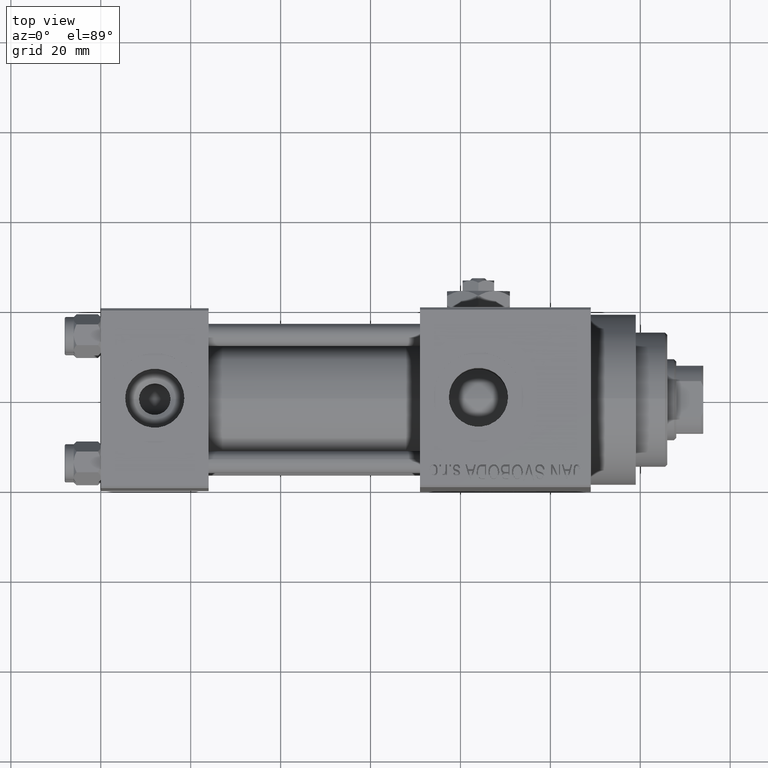
[diagram: clean part render]
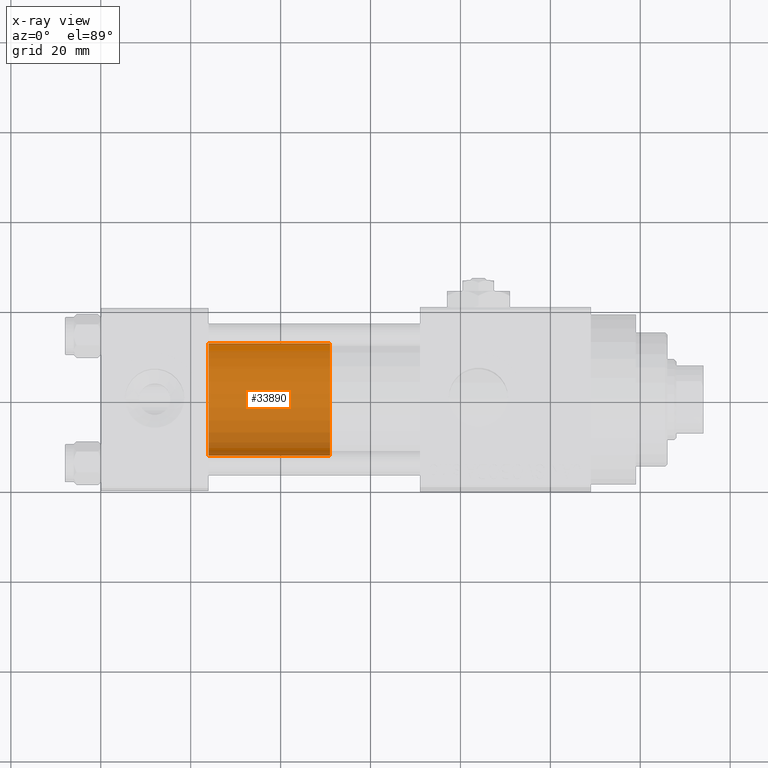
[diagram: x-ray — body ghosted, one internal face saturated and labeled with its STEP entity id]
A machine part, top view, then the same camera in x-ray: the body is ghosted and one INTERNAL B-rep face — a face not visible from any outside direction — is saturated and labeled: STEP entity #33890.
In plain terms, the highlighted cylindrical surface (partial cylindrical patch) has radius 12.5 mm, axis along (-1, 0, 0).
Its self-contained STEP definition (entity closure, byte-faithful):
#1426 = ORIENTED_EDGE ( 'NONE', *, *, #28448, .F. ) ;
#7877 = CARTESIAN_POINT ( 'NONE',  ( -12.50000000000000000, 0.000000000000000000, 27.00000000000000000 ) ) ;
#10487 = EDGE_CURVE ( 'NONE', #43464, #44753, #34233, .T. ) ;
#11046 = DIRECTION ( 'NONE',  ( -1.000000000000000000, 0.000000000000000000, 0.000000000000000000 ) ) ;
#11770 = CARTESIAN_POINT ( 'NONE',  ( 12.50000000000000000, 1.530808498934191521E-15, 27.00000000000000000 ) ) ;
#14612 = CARTESIAN_POINT ( 'NONE',  ( 0.000000000000000000, 0.000000000000000000, 0.000000000000000000 ) ) ;
#15141 = VECTOR ( 'NONE', #27011, 1000.000000000000000 ) ;
#15864 = AXIS2_PLACEMENT_3D ( 'NONE', #22607, #30239, #11046 ) ;
#17973 = EDGE_LOOP ( 'NONE', ( #44839, #20924, #32437, #1426 ) ) ;
#18729 = CARTESIAN_POINT ( 'NONE',  ( 12.50000000000000000, 1.530808498934191521E-15, 0.000000000000000000 ) ) ;
#19151 = CYLINDRICAL_SURFACE ( 'NONE', #15864, 12.50000000000000000 ) ;
#19253 = DIRECTION ( 'NONE',  ( 0.000000000000000000, 0.000000000000000000, 1.000000000000000000 ) ) ;
#19701 = DIRECTION ( 'NONE',  ( 0.000000000000000000, 0.000000000000000000, 1.000000000000000000 ) ) ;
#20924 = ORIENTED_EDGE ( 'NONE', *, *, #43866, .T. ) ;
#22218 = DIRECTION ( 'NONE',  ( 1.000000000000000000, 0.000000000000000000, 0.000000000000000000 ) ) ;
#22607 = CARTESIAN_POINT ( 'NONE',  ( 0.000000000000000000, 0.000000000000000000, 27.00000000000000000 ) ) ;
#22887 = LINE ( 'NONE', #7877, #41729 ) ;
#23885 = CARTESIAN_POINT ( 'NONE',  ( 0.000000000000000000, 0.000000000000000000, 27.00000000000000000 ) ) ;
#26638 = EDGE_CURVE ( 'NONE', #27691, #38359, #29091, .T. ) ;
#27011 = DIRECTION ( 'NONE',  ( -0.000000000000000000, -0.000000000000000000, -1.000000000000000000 ) ) ;
#27691 = VERTEX_POINT ( 'NONE', #32716 ) ;
#28448 = EDGE_CURVE ( 'NONE', #38359, #44753, #22887, .T. ) ;
#28990 = CARTESIAN_POINT ( 'NONE',  ( -12.50000000000000000, 0.000000000000000000, 27.00000000000000000 ) ) ;
#29091 = CIRCLE ( 'NONE', #32260, 12.50000000000000000 ) ;
#30239 = DIRECTION ( 'NONE',  ( -0.000000000000000000, -0.000000000000000000, -1.000000000000000000 ) ) ;
#31436 = LINE ( 'NONE', #11770, #15141 ) ;
#32260 = AXIS2_PLACEMENT_3D ( 'NONE', #23885, #19701, #39409 ) ;
#32437 = ORIENTED_EDGE ( 'NONE', *, *, #10487, .T. ) ;
#32716 = CARTESIAN_POINT ( 'NONE',  ( 12.50000000000000000, 1.530808498934191521E-15, 27.00000000000000000 ) ) ;
#33890 = ADVANCED_FACE ( 'NONE', ( #44772 ), #19151, .T. ) ;
#34233 = CIRCLE ( 'NONE', #42876, 12.50000000000000000 ) ;
#37540 = CARTESIAN_POINT ( 'NONE',  ( -12.50000000000000000, 0.000000000000000000, 0.000000000000000000 ) ) ;
#37665 = DIRECTION ( 'NONE',  ( -0.000000000000000000, -0.000000000000000000, -1.000000000000000000 ) ) ;
#38359 = VERTEX_POINT ( 'NONE', #28990 ) ;
#39409 = DIRECTION ( 'NONE',  ( 1.000000000000000000, 0.000000000000000000, 0.000000000000000000 ) ) ;
#41729 = VECTOR ( 'NONE', #37665, 1000.000000000000000 ) ;
#42876 = AXIS2_PLACEMENT_3D ( 'NONE', #14612, #19253, #22218 ) ;
#43464 = VERTEX_POINT ( 'NONE', #18729 ) ;
#43866 = EDGE_CURVE ( 'NONE', #27691, #43464, #31436, .T. ) ;
#44753 = VERTEX_POINT ( 'NONE', #37540 ) ;
#44772 = FACE_OUTER_BOUND ( 'NONE', #17973, .T. ) ;
#44839 = ORIENTED_EDGE ( 'NONE', *, *, #26638, .F. ) ;